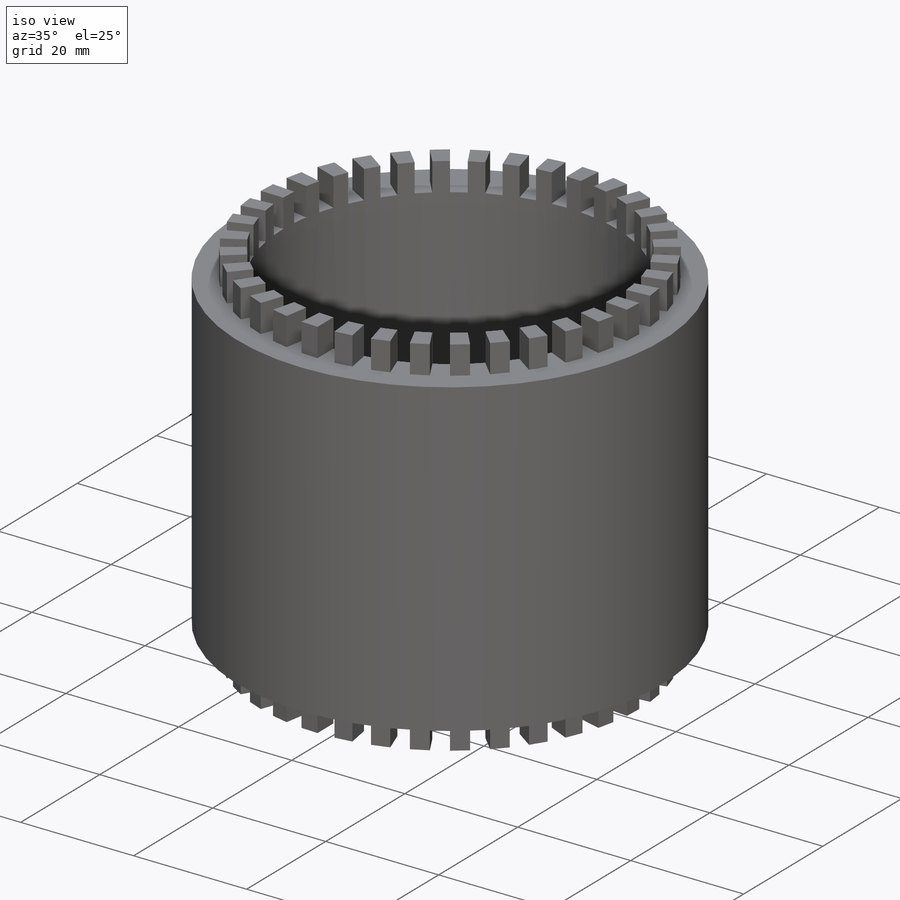
[diagram: iso view]
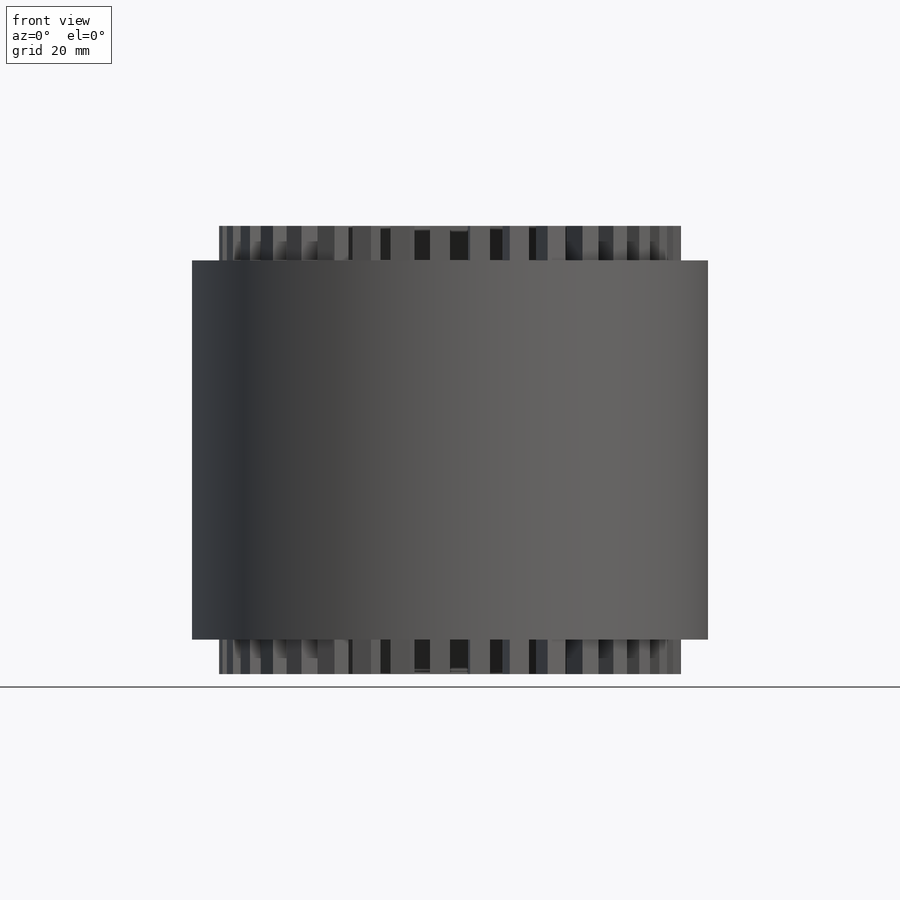
[diagram: front view]
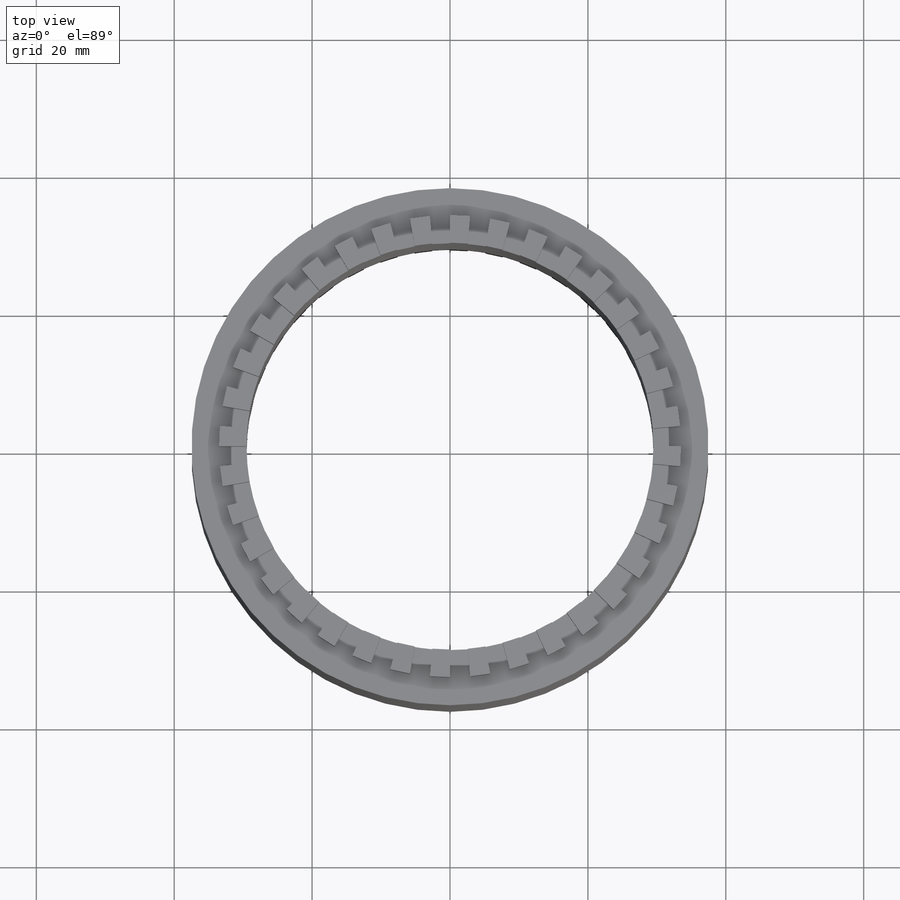
[diagram: top view]
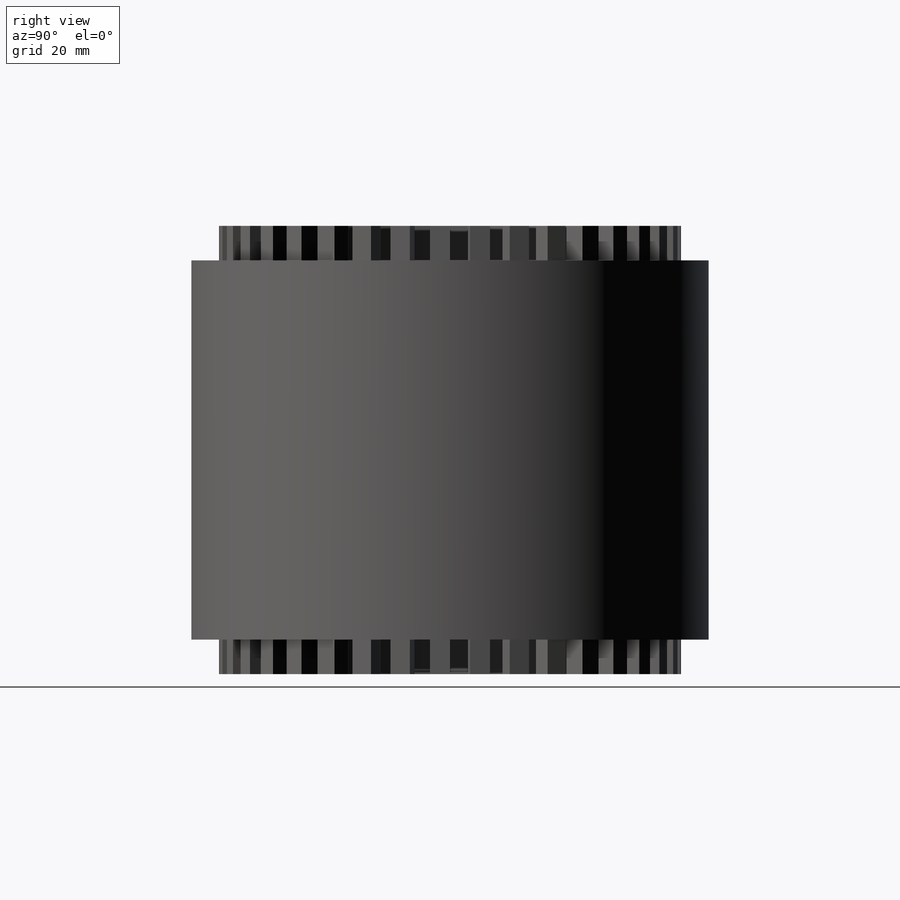
[diagram: right view]
SOLIDWORKS PART (.sldprt)
format: sldprt  version: not decoded by parser v0  size: 546,304 bytes
history: native  units: mm
features: sketch x5, plane x3, extrude x3, cut_extrude x2, material x1 (+9 scaffold rows collapsed)
feature tree (23):
  scaffold x9  (default folders/planes/origin — collapsed)
  material  "Material <not specified>"
  plane  "前视基准面"
  plane  "上视基准面"
  plane  "右视基准面"
  sketch  "Sketch1"  dims[c1.D1=53.0mm c1.D2=53.0mm c1.D3=~65.762687mm c2.D2=3.0mm c2.D3=8.0mm]
  extrude  "Boss-Extrude1"  Depth=55mm
  sketch  "Sketch2"  dims[D1=4.0mm]
  extrude  "Boss-Extrude2"  Depth=5mm
  sketch  "Sketch3"  dims[D1=4.0mm]
  extrude  "Boss-Extrude3"  Depth=5mm
  sketch  "Sketch4"  dims[c1.D1=~3.986333mm c2.D1=5.0deg c2.D2=36.0]
  cut_extrude  "Cut-Extrude1"  [1 undecoded]
  sketch  "Sketch5"  dims[c1.D1=4.0mm c2.D1=5.0deg c3.D1=4.0mm c4.D1=5.0deg c5.D1=~3.991225mm c6.D1=5.0deg c6.D2=36.0]
  cut_extrude  "Cut-Extrude2"  [1 undecoded]
decode coverage: 8 of 10 modeling features carry decoded parameters
note: ~ marks probable driven/reference dimensions
note: 2 parameter values undecoded
note: suppression state not decoded; provenance and decode notes live in map.json
